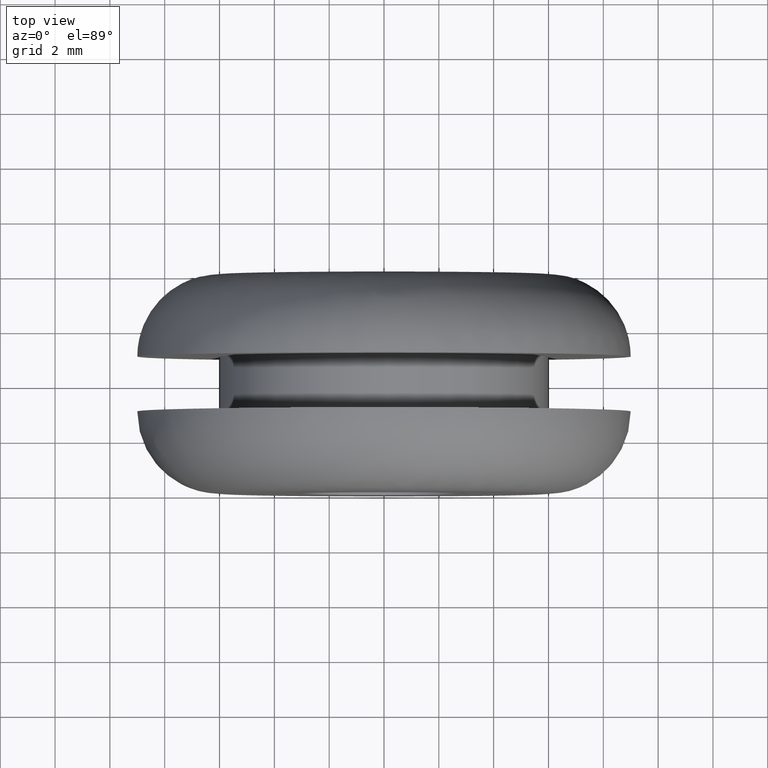
[diagram: clean part render]
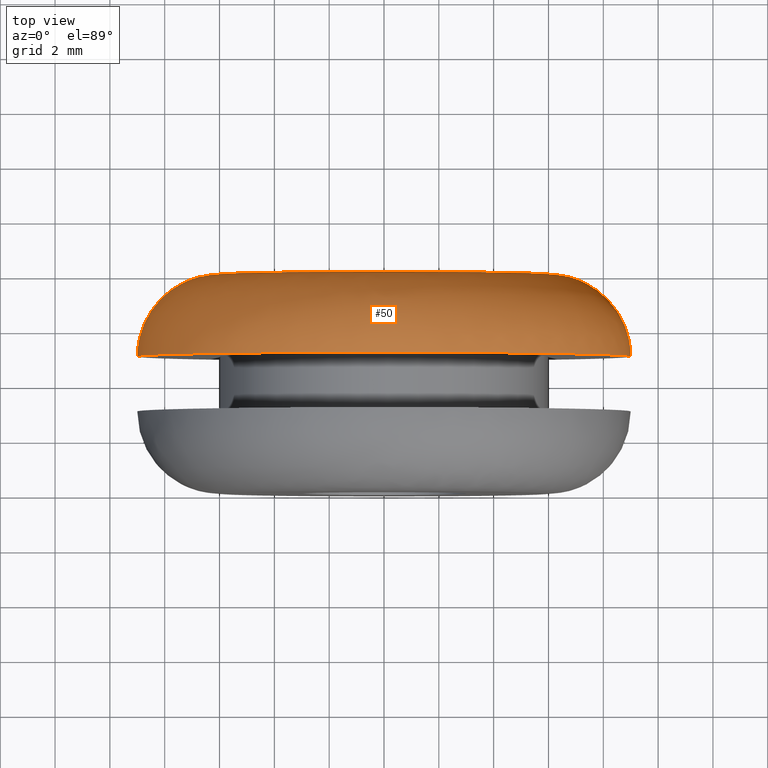
[diagram: same view with one face highlighted and labeled with its STEP entity id]
A machine part, top view. The second image highlights one B-rep face of the part: STEP entity #50.
In plain terms, the highlighted face is a freeform B-spline surface patch.
Its self-contained STEP definition (entity closure, byte-faithful):
#50=ADVANCED_FACE('',(#157),#156,.T.);
#156=( BOUNDED_SURFACE() B_SPLINE_SURFACE( 2,2,((#272,#273,#274,#275,#276),(#277,#278,#279,#280,#281),(#282,#283,#284,#285,#286),(#287,#288,#289,#290,#291),(#292,#293,#294,#295,#296)), .UNSPECIFIED.,.F.,.F.,.F.) B_SPLINE_SURFACE_WITH_KNOTS((3,2,3),(3,2,3),(-1.57079651073E+000,-1.04709932886E+000,2.94667014920E-004),(0.00000000000E+000,1.57079632679E+000,3.14159265359E+000), .UNSPECIFIED. ) GEOMETRIC_REPRESENTATION_ITEM() RATIONAL_B_SPLINE_SURFACE(((9.32988144219E-001,6.59722243544E-001,9.32988144219E-001,6.59722243544E-001,9.32988144219E-001),(9.32988120683E-001,6.59722226901E-001,9.32988120683E-001,6.59722226901E-001,9.32988120683E-001),(1.00000000000E+000,7.07106781187E-001,1.00000000000E+000,7.07106781187E-001,1.00000000000E+000),(8.65976288438E-001,6.12337705901E-001,8.65976288438E-001,6.12337705901E-001,8.65976288438E-001),(1.00000000000E+000,7.07106781187E-001,1.00000000000E+000,7.07106781187E-001,1.00000000000E+000))) REPRESENTATION_ITEM('') SURFACE() );
#157=FACE_OUTER_BOUND('',#297,.T.);
#272=CARTESIAN_POINT('',(-5.99999943523E+000,8.00000000000E+000,-1.52965230442E-014));
#273=CARTESIAN_POINT('',(-5.99999943523E+000,8.00000000000E+000,5.99999943523E+000));
#274=CARTESIAN_POINT('',(2.26816266427E-014,8.00000000000E+000,5.99999943523E+000));
#275=CARTESIAN_POINT('',(5.99999943523E+000,8.00000000000E+000,5.99999943523E+000));
#276=CARTESIAN_POINT('',(5.99999943523E+000,8.00000000000E+000,-1.67660505305E-014));
#277=CARTESIAN_POINT('',(-6.80400522884E+000,8.00000015136E+000,-1.51980624187E-014));
#278=CARTESIAN_POINT('',(-6.80400522884E+000,8.00000015136E+000,6.80400522884E+000));
#279=CARTESIAN_POINT('',(2.27800722378E-014,8.00000015136E+000,6.80400522884E+000));
#280=CARTESIAN_POINT('',(6.80400522884E+000,8.00000015136E+000,6.80400522884E+000));
#281=CARTESIAN_POINT('',(6.80400522884E+000,8.00000015136E+000,-1.68645080256E-014));
#282=CARTESIAN_POINT('',(-7.50025518188E+000,7.59792886531E+000,-1.92706301029E-014));
#283=CARTESIAN_POINT('',(-7.50025518188E+000,7.59792886531E+000,7.50025518188E+000));
#284=CARTESIAN_POINT('',(5.86342130093E-014,7.59792886531E+000,7.50025518188E+000));
#285=CARTESIAN_POINT('',(7.50025518188E+000,7.59792886531E+000,7.50025518188E+000));
#286=CARTESIAN_POINT('',(7.50025518188E+000,7.59792886531E+000,-2.11076021331E-014));
#287=CARTESIAN_POINT('',(-9.00051036377E+000,6.73155964296E+000,-2.80460572971E-014));
#288=CARTESIAN_POINT('',(-9.00051036377E+000,6.73155964296E+000,9.00051036377E+000));
#289=CARTESIAN_POINT('',(1.35891468467E-013,6.73155964296E+000,9.00051036377E+000));
#290=CARTESIAN_POINT('',(9.00051036377E+000,6.73155964296E+000,9.00051036377E+000));
#291=CARTESIAN_POINT('',(9.00051036377E+000,6.73155964296E+000,-3.02504737330E-014));
#292=CARTESIAN_POINT('',(-8.99999986976E+000,4.99911599897E+000,-4.59613700638E-014));
#293=CARTESIAN_POINT('',(-8.99999986976E+000,4.99911599897E+000,8.99999986976E+000));
#294=CARTESIAN_POINT('',(2.90012246539E-013,4.99911599897E+000,8.99999986976E+000));
#295=CARTESIAN_POINT('',(8.99999986976E+000,4.99911599897E+000,8.99999986976E+000));
#296=CARTESIAN_POINT('',(8.99999986976E+000,4.99911599897E+000,-4.81656614688E-014));
#297=EDGE_LOOP('',(#386,#387,#388,#389,#390));
#386=ORIENTED_EDGE('',*,*,#407,.T.);
#387=ORIENTED_EDGE('',*,*,#433,.T.);
#388=ORIENTED_EDGE('',*,*,#401,.F.);
#389=ORIENTED_EDGE('',*,*,#400,.F.);
#390=ORIENTED_EDGE('',*,*,#434,.F.);
#400=EDGE_CURVE('',#443,#450,#451,.T.);
#401=EDGE_CURVE('',#450,#457,#458,.T.);
#407=EDGE_CURVE('',#499,#491,#500,.T.);
#433=EDGE_CURVE('',#491,#457,#674,.T.);
#434=EDGE_CURVE('',#499,#443,#680,.T.);
#443=VERTEX_POINT('',#692);
#450=VERTEX_POINT('',#697);
#451=CIRCLE('',#701,8.99999999999E+000);
#457=VERTEX_POINT('',#702);
#458=CIRCLE('',#706,8.99999999999E+000);
#491=VERTEX_POINT('',#726);
#499=VERTEX_POINT('',#732);
#500=CIRCLE('',#736,6.00000000039E+000);
#674=(BOUNDED_CURVE() B_SPLINE_CURVE(2,(#849,#850,#851,#852,#853),.UNSPECIFIED.,.F.,.F.) B_SPLINE_CURVE_WITH_KNOTS((3,2,3),(-1.57079631639E+000,-1.04709932886E+000,-1.18516572379E-005),.UNSPECIFIED.) CURVE() GEOMETRIC_REPRESENTATION_ITEM() RATIONAL_B_SPLINE_CURVE((9.32988144219E-001,9.32988145550E-001,1.00000000000E+000,8.66015510326E-001,9.99921579180E-001)) REPRESENTATION_ITEM('') );
#680=(BOUNDED_CURVE() B_SPLINE_CURVE(2,(#854,#855,#856,#857,#858),.UNSPECIFIED.,.F.,.F.) B_SPLINE_CURVE_WITH_KNOTS((3,2,3),(-1.57079651073E+000,-1.04709932886E+000,2.94667014920E-004),.UNSPECIFIED.) CURVE() GEOMETRIC_REPRESENTATION_ITEM() RATIONAL_B_SPLINE_CURVE((9.32988144219E-001,9.32988120683E-001,1.00000000000E+000,8.65976288438E-001,1.00000000000E+000)) REPRESENTATION_ITEM('') );
#692=CARTESIAN_POINT('',(8.99999999998E+000,4.99999445622E+000,9.78850653478E-006));
#697=CARTESIAN_POINT('',(0.00000000000E+000,5.00000000000E+000,9.00000000000E+000));
#698=CARTESIAN_POINT('',(-2.05080397109E-012,4.99999706754E+000,1.00102148792E-011));
#699=DIRECTION('',(-2.90147797382E-007,-1.00000000000E+000,3.25828545244E-007));
#700=DIRECTION('',(-9.93311710536E-001,3.25828545675E-007,1.15463612071E-001));
#701=AXIS2_PLACEMENT_3D('',#698,#699,#700);
#702=CARTESIAN_POINT('',(-8.99999999999E+000,4.99999411331E+000,3.79724600000E-008));
#703=CARTESIAN_POINT('',(2.84927637040E-012,4.99999705666E+000,8.70414851306E-012));
#704=DIRECTION('',(3.27038295842E-007,-1.00000000000E+000,3.27038294520E-007));
#705=DIRECTION('',(3.16586263378E-013,-3.27038294520E-007,-1.00000000000E+000));
#706=AXIS2_PLACEMENT_3D('',#703,#704,#705);
#726=CARTESIAN_POINT('',(-6.00000000056E+000,8.00000000000E+000,-5.34344452769E-009));
#732=CARTESIAN_POINT('',(6.00000000021E+000,8.00000000000E+000,1.38409316695E-009));
#733=CARTESIAN_POINT('',(-1.74684267051E-010,8.00000000000E+000,-3.85132814529E-010));
#734=DIRECTION('',(3.08192176609E-016,-1.00000000000E+000,2.65130489284E-015));
#735=DIRECTION('',(2.91138640973E-011,-2.65130489283E-015,-1.00000000000E+000));
#736=AXIS2_PLACEMENT_3D('',#733,#734,#735);
#849=CARTESIAN_POINT('',(-6.00000003195E+000,8.00000000000E+000,-1.52965229711E-014));
#850=CARTESIAN_POINT('',(-6.80400550578E+000,7.99999999144E+000,-1.51980640385E-014));
#851=CARTESIAN_POINT('',(-7.50025518188E+000,7.59792886531E+000,-1.92706301029E-014));
#852=CARTESIAN_POINT('',(-9.00000338903E+000,6.73185241136E+000,-2.80430918550E-014));
#853=CARTESIAN_POINT('',(-8.99999999999E+000,4.99999412937E+000,-4.59522892758E-014));
#854=CARTESIAN_POINT('',(5.99999943523E+000,8.00000000000E+000,-1.67660505305E-014));
#855=CARTESIAN_POINT('',(6.80400522884E+000,8.00000015136E+000,-1.68645080256E-014));
#856=CARTESIAN_POINT('',(7.50025518188E+000,7.59792886531E+000,-2.11076021331E-014));
#857=CARTESIAN_POINT('',(9.00051036377E+000,6.73155964296E+000,-3.02504737330E-014));
#858=CARTESIAN_POINT('',(8.99999986976E+000,4.99911599897E+000,-4.81656614688E-014));